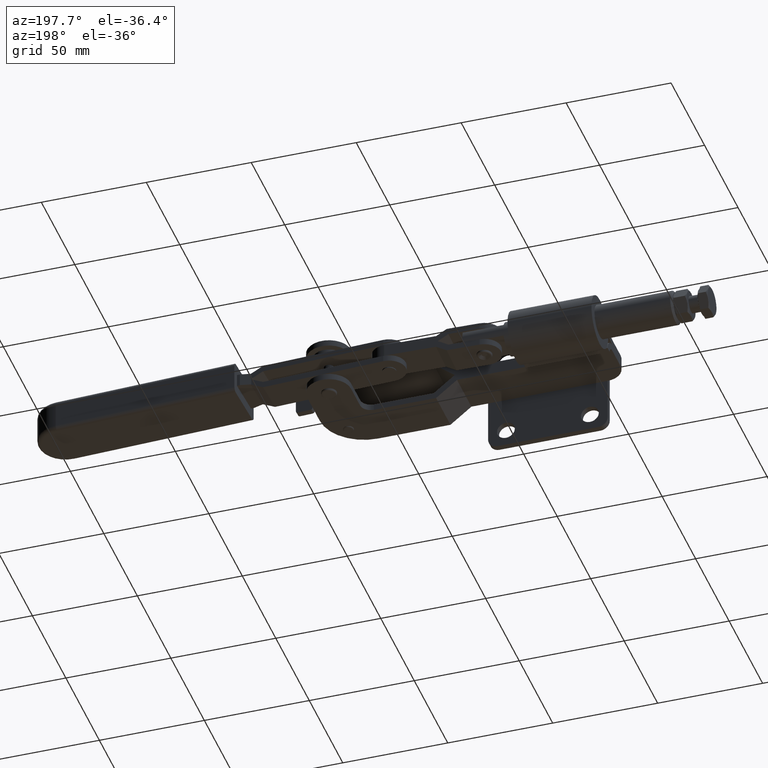
[diagram: clean part render]
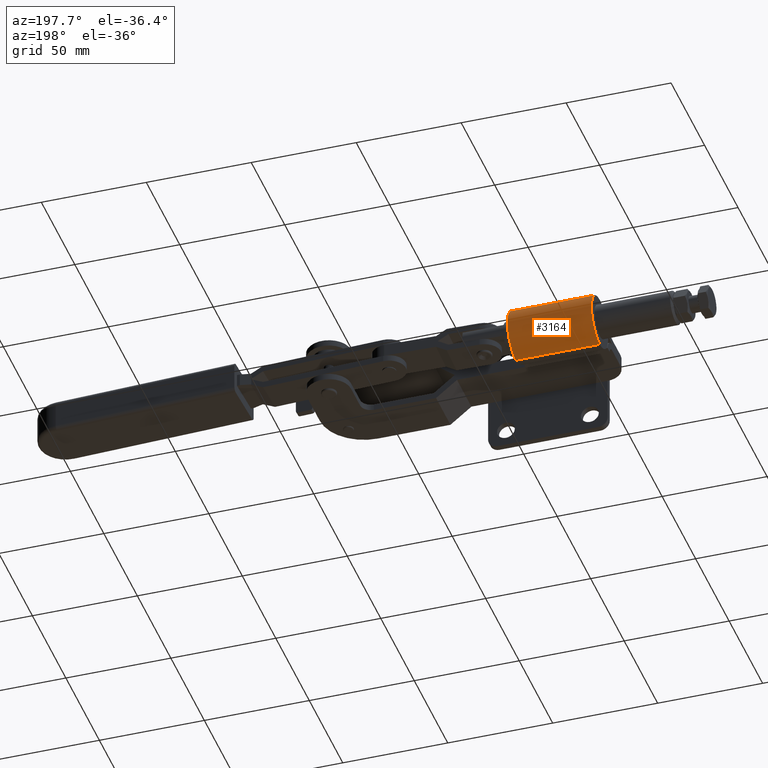
[diagram: same view with one face highlighted and labeled with its STEP entity id]
A machine part, auxiliary view. The second image highlights one B-rep face of the part: STEP entity #3164.
In plain terms, the highlighted cylindrical surface (edge-blend (fillet) strip) has radius 12.5 mm, axis along (-1, -0, -0).
Its self-contained STEP definition (entity closure, byte-faithful):
#301 = CIRCLE ( 'NONE', #4561, 12.50000000000000200 ) ;
#350 = CARTESIAN_POINT ( 'NONE',  ( -3.469446951953614200E-015, 42.99999999999928900, -10.98568153118880600 ) ) ;
#355 = CARTESIAN_POINT ( 'NONE',  ( 39.99999999999999300, 42.99999999999928900, -10.98568153118880600 ) ) ;
#551 = CARTESIAN_POINT ( 'NONE',  ( 39.99999999999999300, 42.99999999999928900, -10.98568153118880600 ) ) ;
#1033 = DIRECTION ( 'NONE',  ( -1.000000000000000000, -0.0000000000000000000, -0.0000000000000000000 ) ) ;
#1151 = DIRECTION ( 'NONE',  ( 0.0000000000000000000, 0.0000000000000000000, -1.000000000000000000 ) ) ;
#1172 = VECTOR ( 'NONE', #5564, 1000.000000000000000 ) ;
#2352 = FACE_OUTER_BOUND ( 'NONE', #2725, .T. ) ;
#2377 = ORIENTED_EDGE ( 'NONE', *, *, #4403, .F. ) ;
#2395 = CARTESIAN_POINT ( 'NONE',  ( 39.99999999999999300, 42.99999999999928900, -23.48568153118881000 ) ) ;
#2680 = VERTEX_POINT ( 'NONE', #4776 ) ;
#2725 = EDGE_LOOP ( 'NONE', ( #4899, #4587, #3469, #2377 ) ) ;
#3066 = DIRECTION ( 'NONE',  ( 0.0000000000000000000, 0.0000000000000000000, 1.000000000000000000 ) ) ;
#3139 = DIRECTION ( 'NONE',  ( 1.000000000000000000, 0.0000000000000000000, 0.0000000000000000000 ) ) ;
#3164 = ADVANCED_FACE ( 'NONE', ( #2352 ), #3576, .T. ) ;
#3469 = ORIENTED_EDGE ( 'NONE', *, *, #5581, .T. ) ;
#3576 = CYLINDRICAL_SURFACE ( 'NONE', #7302, 12.50000000000000000 ) ;
#3793 = VECTOR ( 'NONE', #1033, 1000.000000000000000 ) ;
#3803 = AXIS2_PLACEMENT_3D ( 'NONE', #350, #3139, #5292 ) ;
#3855 = CARTESIAN_POINT ( 'NONE',  ( -3.469446951953614200E-015, 42.99999999999928900, -23.48568153118881000 ) ) ;
#3881 = CIRCLE ( 'NONE', #3803, 12.50000000000000200 ) ;
#4003 = LINE ( 'NONE', #4112, #3793 ) ;
#4112 = CARTESIAN_POINT ( 'NONE',  ( 39.99999999999999300, 42.99999999999928900, 1.514318468811193700 ) ) ;
#4371 = LINE ( 'NONE', #6889, #1172 ) ;
#4403 = EDGE_CURVE ( 'NONE', #2680, #7573, #4003, .T. ) ;
#4561 = AXIS2_PLACEMENT_3D ( 'NONE', #551, #4774, #1151 ) ;
#4587 = ORIENTED_EDGE ( 'NONE', *, *, #5300, .T. ) ;
#4774 = DIRECTION ( 'NONE',  ( 1.000000000000000000, 0.0000000000000000000, 0.0000000000000000000 ) ) ;
#4776 = CARTESIAN_POINT ( 'NONE',  ( 39.99999999999999300, 42.99999999999928900, 1.514318468811193700 ) ) ;
#4899 = ORIENTED_EDGE ( 'NONE', *, *, #6937, .F. ) ;
#5292 = DIRECTION ( 'NONE',  ( 0.0000000000000000000, 0.0000000000000000000, -1.000000000000000000 ) ) ;
#5300 = EDGE_CURVE ( 'NONE', #5768, #6385, #4371, .T. ) ;
#5481 = CARTESIAN_POINT ( 'NONE',  ( -3.469446951953614200E-015, 42.99999999999928900, 1.514318468811193700 ) ) ;
#5564 = DIRECTION ( 'NONE',  ( -1.000000000000000000, -0.0000000000000000000, -0.0000000000000000000 ) ) ;
#5581 = EDGE_CURVE ( 'NONE', #6385, #7573, #3881, .T. ) ;
#5768 = VERTEX_POINT ( 'NONE', #2395 ) ;
#6385 = VERTEX_POINT ( 'NONE', #3855 ) ;
#6889 = CARTESIAN_POINT ( 'NONE',  ( 39.99999999999999300, 42.99999999999928900, -23.48568153118881000 ) ) ;
#6937 = EDGE_CURVE ( 'NONE', #5768, #2680, #301, .T. ) ;
#7302 = AXIS2_PLACEMENT_3D ( 'NONE', #355, #7855, #3066 ) ;
#7573 = VERTEX_POINT ( 'NONE', #5481 ) ;
#7855 = DIRECTION ( 'NONE',  ( -1.000000000000000000, -0.0000000000000000000, -0.0000000000000000000 ) ) ;